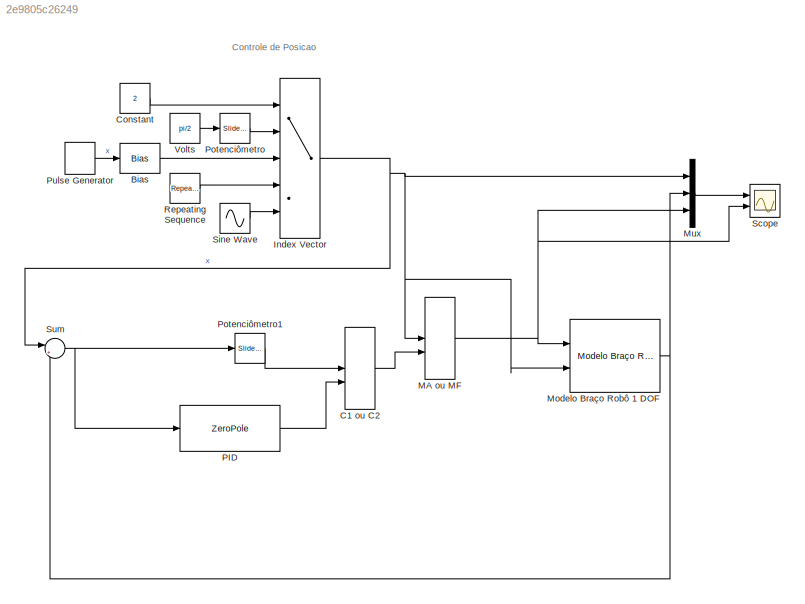
MODEL slx_2e9805c26249
KIND model
CONFIG AbsTol = auto
CONFIG FixedStep = 0.01
CONFIG MaxStep = 1
CONFIG MinStep = auto
CONFIG RelTol = 1e-3
CONFIG SampleTimeConstraint = Unconstrained
CONFIG Solver = ode5
CONFIG SolverMode = Auto
CONFIG SolverName = ode5
CONFIG StartTime = 0.0
CONFIG StopTime = 1000
BLOCK [Bias] Bias
  SaturateOnIntegerOverflow = off
BLOCK [ManualSwitch] C1 ou C2
  CurrentSetting = 0
BLOCK [Constant] Constant
  Value = 2
BLOCK [MultiPortSwitch] Index Vector
  DataPortOrder = Zero-based contiguous
  InputSameDT = off
  Inputs = 4
  Ports = [5, 1]
  SaturateOnIntegerOverflow = off
  zeroidx = on
BLOCK [ManualSwitch] MA ou MF
  CurrentSetting = 0
BLOCK [Reference] Modelo Braço Robô 1 DOF  REF=AvgModels/Modelos Animados/Modelo
Braço Robô
1 DOF
  J = 1
  K = 0.1
  Ports = [2, 1]
  SourceBlock = AvgModels/Modelos Animados/Modelo\nBraço Robô\n1 DOF
  SourceType = BracoRobo
BLOCK [Mux] Mux
  DisplayOption = bar
  Inputs = 3
  Ports = [3, 1]
BLOCK [ZeroPole] PID
  Gain = [55.5]
  Poles = [0 -2]
  Zeros = [-0.2 -0.2]
BLOCK [Reference] Potenciômetro  REF=simulink/Math
Operations/Slider
Gain
  Ports = [1, 1]
  SourceBlock = simulink/Math\nOperations/Slider\nGain
  SourceType = Slider Gain
  gain = 0.2
  high = 1
  low = -1
BLOCK [Reference] Potenciômetro1  REF=simulink/Math
Operations/Slider
Gain
  Ports = [1, 1]
  SourceBlock = simulink/Math\nOperations/Slider\nGain
  SourceType = Slider Gain
  gain = 0.625
  high = 0.625
  low = 0
BLOCK [DiscretePulseGenerator] Pulse Generator
  Amplitude = pi/2
  Period = 100
  Ports = [0, 1]
  PulseType = Time based
  PulseWidth = 50
BLOCK [Reference] Repeating Sequence  REF=simulink/Sources/Repeating
Sequence
  Ports = [0, 1]
  SourceBlock = simulink/Sources/Repeating\nSequence
  SourceType = Repeating table
  rep_seq_t = [0 60 120]
  rep_seq_y = [0 4*pi 0]
BLOCK [Scope] Scope
  Floating = off
  NumInputPorts = 2
  Ports = [2]
  YMax = 5~5
  YMin = -5~-5
  ZoomMode = xonly
BLOCK [Sin] Sine Wave
  Frequency = 0.2
  Ports = [0, 1]
  SampleTime = 0
BLOCK [Sum] Sum
  IconShape = round
  InputSameDT = off
  Inputs = |+-
  OutDataTypeStr = Inherit: Inherit via internal rule
  Ports = [2, 1]
  SaturateOnIntegerOverflow = off
BLOCK [Constant] Volts
  Value = pi/2
ANNOTATION (root): Controle de Posicao
LINE Bias:1 -> Index Vector:3
LINE C1 ou C2:1 -> MA ou MF:2
LINE Constant:1 -> Index Vector:1
NET Index Vector:1 -> MA ou MF:1, Modelo Braço Robô 1 DOF:2, Mux:1, Sum:1
NET MA ou MF:1 -> Modelo Braço Robô 1 DOF:1, Mux:3, Scope:2
NET Modelo Braço Robô 1 DOF:1 -> Mux:2, Sum:2
LINE Mux:1 -> Scope:1
LINE PID:1 -> C1 ou C2:2
LINE Potenciômetro1:1 -> C1 ou C2:1
LINE Potenciômetro:1 -> Index Vector:2
LINE Pulse Generator:1 -> Bias:1
LINE Repeating Sequence:1 -> Index Vector:4
LINE Sine Wave:1 -> Index Vector:5
NET Sum:1 -> PID:1, Potenciômetro1:1
LINE Volts:1 -> Potenciômetro:1
note: NET lines group one-source signal fan-out (src -> all destinations, sorted); 1:1 wires keep LINE
